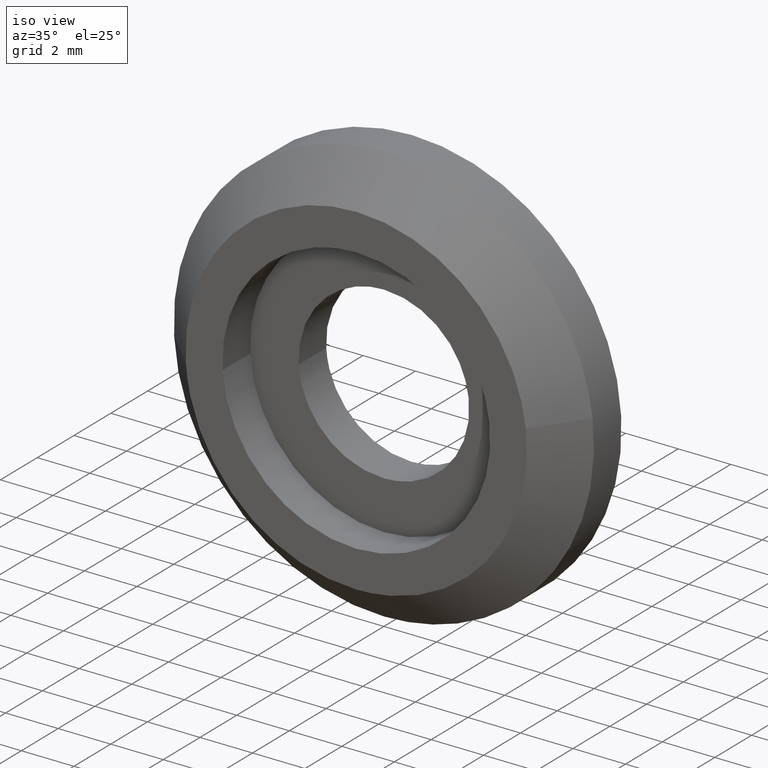
[diagram: clean part render]
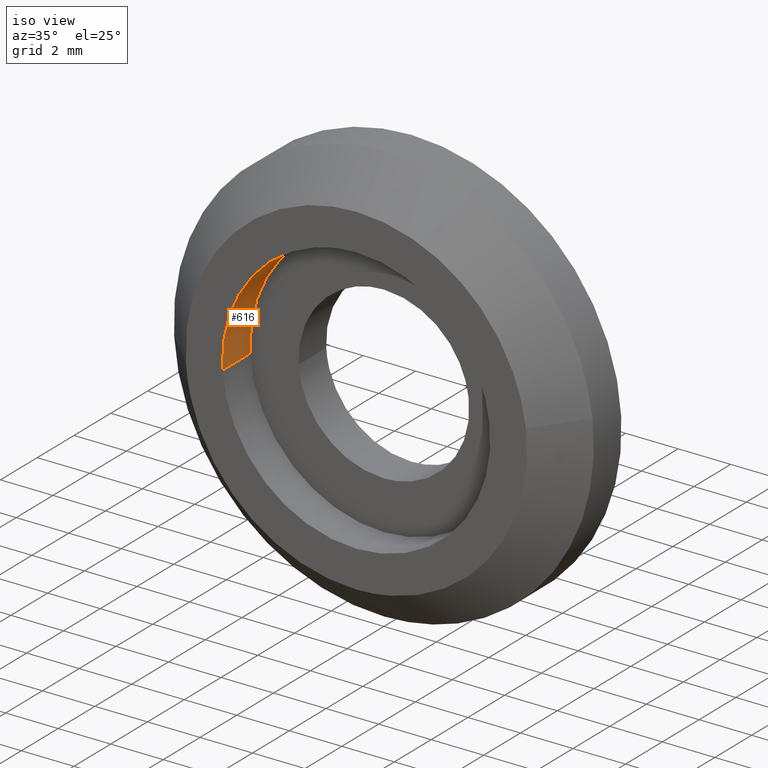
[diagram: same view with one face highlighted and labeled with its STEP entity id]
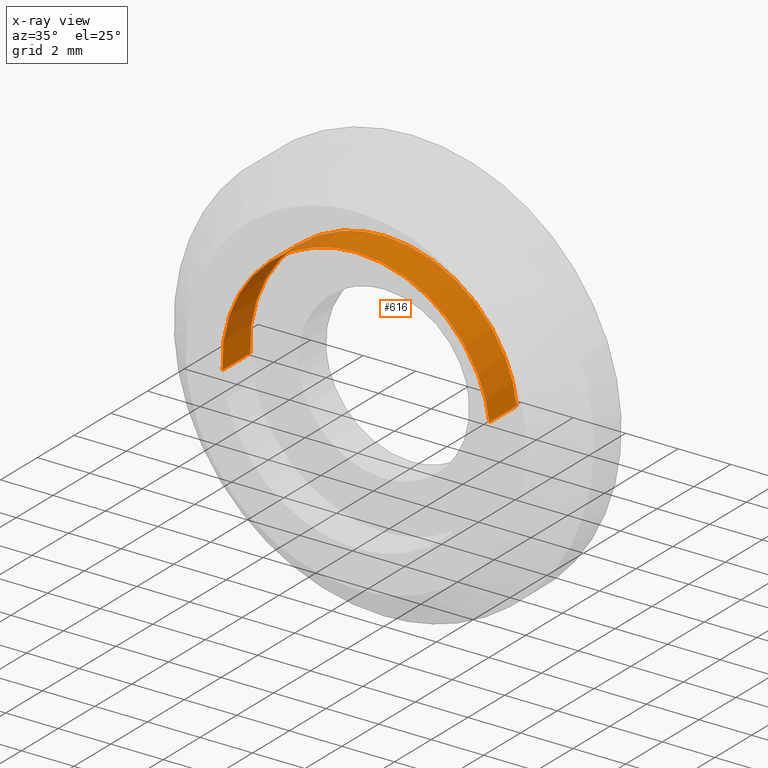
[diagram: x-ray of the same camera — body ghosted, the highlighted face saturated]
A machine part, iso view. The second image highlights one B-rep face of the part: STEP entity #616.
The next image is the same camera in x-ray: the body ghosted, the highlighted face saturated — about 0% of this face is hidden behind the body in this view.
In plain terms, the highlighted face is a freeform B-spline surface patch.
Its self-contained STEP definition (entity closure, byte-faithful):
#453=CARTESIAN_POINT('',(5.064348875071119,-2.917867E-014,0.601972151814212));
#454=VERTEX_POINT('',#453);
#472=CARTESIAN_POINT('',(-5.090487553960555,9.225259E-015,-0.311346210786117));
#473=VERTEX_POINT('',#472);
#487=CARTESIAN_POINT('',(-5.090487552947563,-1.500000000000000,-0.311346227348550));
#488=VERTEX_POINT('',#487);
#489=CARTESIAN_POINT('',(-5.090487552947563,-1.500000000000000,-0.311346227348550));
#490=CARTESIAN_POINT('',(-5.090487553960555,9.225259E-015,-0.311346210786117));
#491=QUASI_UNIFORM_CURVE('',1,(#489,#490),.UNSPECIFIED.,.F.,.U.);
#492=EDGE_CURVE('',#488,#473,#491,.T.);
#509=CARTESIAN_POINT('',(5.064348871488670,-1.500000000000000,0.601972181953224));
#510=VERTEX_POINT('',#509);
#526=CARTESIAN_POINT('',(5.064348871488670,-1.500000000000000,0.601972181953224));
#527=CARTESIAN_POINT('',(5.064348875071119,-2.917867E-014,0.601972151814212));
#528=QUASI_UNIFORM_CURVE('',1,(#526,#527),.UNSPECIFIED.,.F.,.U.);
#529=EDGE_CURVE('',#510,#454,#528,.T.);
#534=CARTESIAN_POINT('',(-5.090487471951521,-1.537500000000000,-0.311347551627771));
#535=CARTESIAN_POINT('',(-5.401835023579292,-1.537500000000000,4.779139920323751));
#536=CARTESIAN_POINT('',(-0.311347551627771,-1.537500000000000,5.090487471951521));
#537=CARTESIAN_POINT('',(4.495871803281456,-1.537500000000000,5.384509603335889));
#538=CARTESIAN_POINT('',(5.064348584454699,-1.537500000000001,0.601974596749468));
#539=CARTESIAN_POINT('',(-5.090487471951521,0.038437500000000,-0.311347551627771));
#540=CARTESIAN_POINT('',(-5.401835023579292,0.038437500000000,4.779139920323751));
#541=CARTESIAN_POINT('',(-0.311347551627771,0.038437500000000,5.090487471951521));
#542=CARTESIAN_POINT('',(4.495871803281456,0.038437500000000,5.384509603335889));
#543=CARTESIAN_POINT('',(5.064348584454699,0.038437500000000,0.601974596749468));
#551=(BOUNDED_SURFACE()B_SPLINE_SURFACE(2,1,((#534,#539),(#535,#540),(#536,#541),(#537,#542),(#538,#543)),.UNSPECIFIED.,.F.,.F.,.U.)B_SPLINE_SURFACE_WITH_KNOTS((3,2,3),(2,2),(0.0,8.449956672411139,16.561915077925828),(0.0,1.0),.UNSPECIFIED.)GEOMETRIC_REPRESENTATION_ITEM()RATIONAL_B_SPLINE_SURFACE(((1.0,1.0),(0.707106781186548,0.707106781186548),(1.0,1.0),(0.718822509939086,0.718822509939086),(0.977505800795127,0.977505800795127)))REPRESENTATION_ITEM('')SURFACE());
#552=CARTESIAN_POINT('',(0.0,0.0,5.100000000000001));
#553=VERTEX_POINT('',#552);
#554=CARTESIAN_POINT('',(0.0,0.0,5.100000000000001));
#555=CARTESIAN_POINT('',(4.529692284562907,0.0,5.100000000000001));
#556=CARTESIAN_POINT('',(5.064348875071119,-2.917867E-014,0.601972151814212));
#564=(BOUNDED_CURVE()B_SPLINE_CURVE(2,(#554,#555,#556),.UNSPECIFIED.,.F.,.U.)B_SPLINE_CURVE_WITH_KNOTS((3,3),(0.0,0.229562555106003),.UNSPECIFIED.)CURVE()GEOMETRIC_REPRESENTATION_ITEM()RATIONAL_B_SPLINE_CURVE((1.0,0.731050737263850,0.956026914108389))REPRESENTATION_ITEM(''));
#565=EDGE_CURVE('',#553,#454,#564,.T.);
#566=ORIENTED_EDGE('',*,*,#565,.T.);
#567=ORIENTED_EDGE('',*,*,#529,.F.);
#568=CARTESIAN_POINT('',(0.0,-1.500000000000000,5.100000000000001));
#569=VERTEX_POINT('',#568);
#570=CARTESIAN_POINT('',(0.0,-1.500000000000000,5.100000000000001));
#571=CARTESIAN_POINT('',(4.529692257415985,-1.500000000000000,5.100000000000000));
#572=CARTESIAN_POINT('',(5.064348871488670,-1.500000000000000,0.601972181953224));
#580=(BOUNDED_CURVE()B_SPLINE_CURVE(2,(#570,#571,#572),.UNSPECIFIED.,.F.,.U.)B_SPLINE_CURVE_WITH_KNOTS((3,3),(0.0,0.229562554100228),.UNSPECIFIED.)CURVE()GEOMETRIC_REPRESENTATION_ITEM()RATIONAL_B_SPLINE_CURVE((1.0,0.731050738442187,0.956026912137029))REPRESENTATION_ITEM(''));
#581=EDGE_CURVE('',#569,#510,#580,.T.);
#582=ORIENTED_EDGE('',*,*,#581,.F.);
#583=CARTESIAN_POINT('',(-5.090487552947563,-1.500000000000000,-0.311346227348550));
#584=CARTESIAN_POINT('',(-5.100000000000001,-1.500000000000000,-0.155818428826631));
#585=CARTESIAN_POINT('',(-5.100000000000001,-1.500000000000000,0.0));
#586=CARTESIAN_POINT('',(-5.100000000000001,-1.500000000000000,5.100000000000001));
#587=CARTESIAN_POINT('',(0.0,-1.500000000000000,5.100000000000001));
#595=(BOUNDED_CURVE()B_SPLINE_CURVE(2,(#583,#584,#585,#586,#587),.UNSPECIFIED.,.F.,.U.)B_SPLINE_CURVE_WITH_KNOTS((3,2,3),(0.739333007129641,0.750000000000000,1.0),.UNSPECIFIED.)CURVE()GEOMETRIC_REPRESENTATION_ITEM()RATIONAL_B_SPLINE_CURVE((0.976072137876048,0.987502840492562,1.0,0.707106781186548,1.0))REPRESENTATION_ITEM(''));
#596=EDGE_CURVE('',#488,#569,#595,.T.);
#597=ORIENTED_EDGE('',*,*,#596,.F.);
#598=ORIENTED_EDGE('',*,*,#492,.T.);
#599=CARTESIAN_POINT('',(-5.090487553960555,9.225259E-015,-0.311346210786117));
#600=CARTESIAN_POINT('',(-5.100000000000001,0.0,-0.155818420522195));
#601=CARTESIAN_POINT('',(-5.100000000000001,0.0,0.0));
#602=CARTESIAN_POINT('',(-5.100000000000001,0.0,5.100000000000001));
#603=CARTESIAN_POINT('',(0.0,0.0,5.100000000000001));
#611=(BOUNDED_CURVE()B_SPLINE_CURVE(2,(#599,#600,#601,#602,#603),.UNSPECIFIED.,.F.,.U.)B_SPLINE_CURVE_WITH_KNOTS((3,2,3),(0.739333007691040,0.750000000000000,1.0),.UNSPECIFIED.)CURVE()GEOMETRIC_REPRESENTATION_ITEM()RATIONAL_B_SPLINE_CURVE((0.976072139079234,0.987502841150282,1.0,0.707106781186548,1.0))REPRESENTATION_ITEM(''));
#612=EDGE_CURVE('',#473,#553,#611,.T.);
#613=ORIENTED_EDGE('',*,*,#612,.T.);
#614=EDGE_LOOP('',(#566,#567,#582,#597,#598,#613));
#615=FACE_OUTER_BOUND('',#614,.T.);
#616=ADVANCED_FACE('',(#615),#551,.F.);